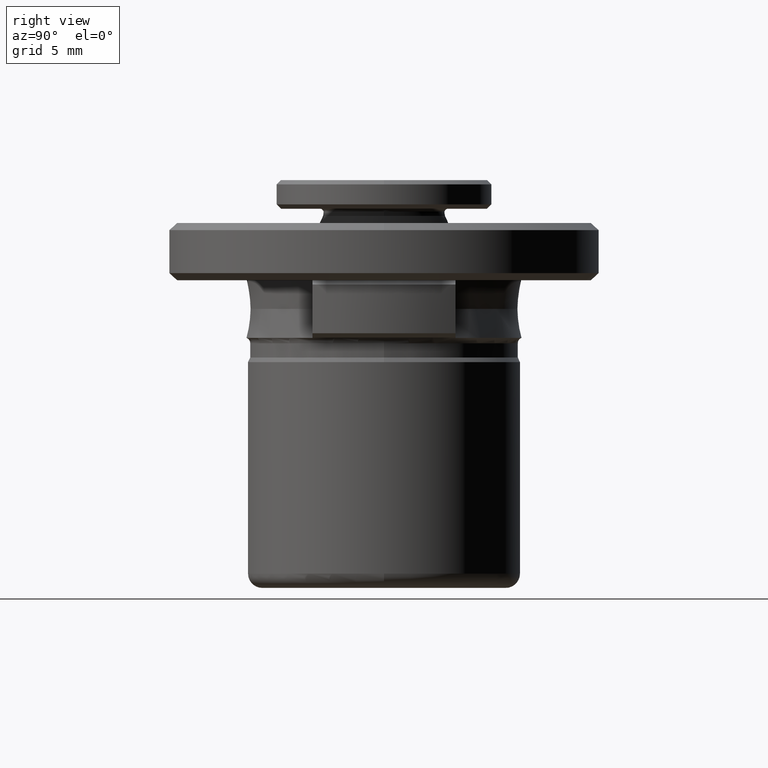
[diagram: clean part render]
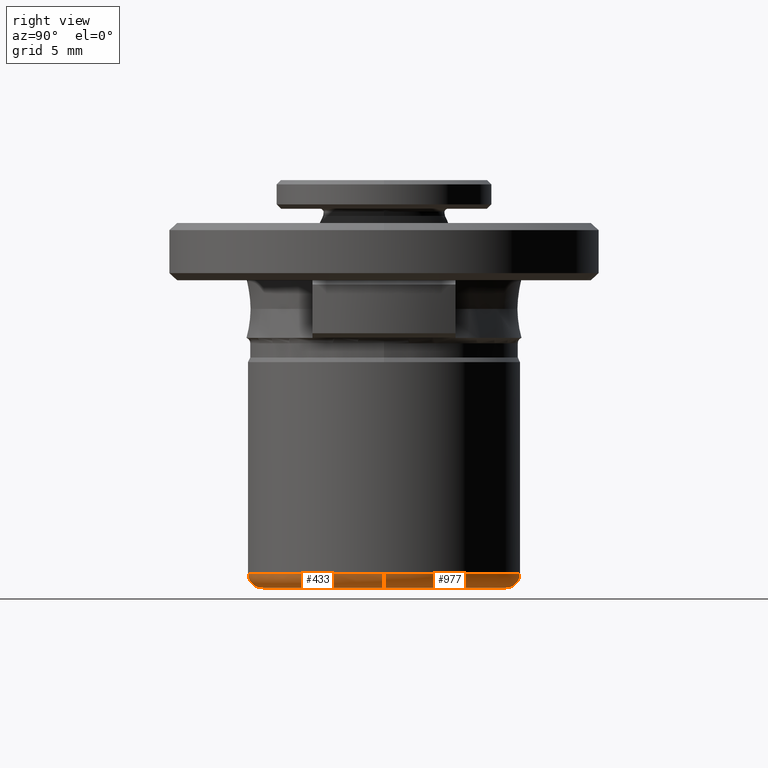
[diagram: same view with one multi-face feature highlighted, each face labeled with its STEP entity id]
A machine part, right view. The highlighted faces form ONE feature: a constant-radius fillet chain: 2 tangent blend faces with common blend radius 1 mm. The faces share edges in the B-rep.
Their STEP definitions:
[1] entity #433 (Torus):
#112 = CARTESIAN_POINT ( 'NONE',  ( 0.0000000000000000000, 2.364620801796248300E-016, -11.75000000000000000 ) ) ;
#114 = ORIENTED_EDGE ( 'NONE', *, *, #713, .F. ) ;
#247 = DIRECTION ( 'NONE',  ( -0.0000000000000000000, -0.0000000000000000000, -1.000000000000000000 ) ) ;
#371 = AXIS2_PLACEMENT_3D ( 'NONE', #1959, #761, #1793 ) ;
#374 = DIRECTION ( 'NONE',  ( -1.000000000000000000, 1.224646799147351500E-016, 0.0000000000000000000 ) ) ;
#397 = DIRECTION ( 'NONE',  ( 1.224646799147353200E-016, 1.000000000000000000, -0.0000000000000000000 ) ) ;
#433 = ADVANCED_FACE ( 'NONE', ( #459 ), #1265, .T. ) ;
#459 = FACE_OUTER_BOUND ( 'NONE', #1148, .T. ) ;
#570 = CARTESIAN_POINT ( 'NONE',  ( 0.0000000000000000000, 2.364620801796248300E-016, -12.75000000000000200 ) ) ;
#582 = ORIENTED_EDGE ( 'NONE', *, *, #2026, .F. ) ;
#591 = DIRECTION ( 'NONE',  ( 0.0000000000000000000, 0.0000000000000000000, 1.000000000000000000 ) ) ;
#629 = DIRECTION ( 'NONE',  ( 0.0000000000000000000, 0.0000000000000000000, 1.000000000000000000 ) ) ;
#663 = CARTESIAN_POINT ( 'NONE',  ( 0.0000000000000000000, 2.364620801796248300E-016, -11.75000000000000000 ) ) ;
#713 = EDGE_CURVE ( 'NONE', #1878, #932, #890, .T. ) ;
#734 = AXIS2_PLACEMENT_3D ( 'NONE', #112, #629, #1945 ) ;
#761 = DIRECTION ( 'NONE',  ( 0.0000000000000000000, 0.0000000000000000000, 1.000000000000000000 ) ) ;
#793 = CIRCLE ( 'NONE', #2130, 8.500000000000000000 ) ;
#866 = CIRCLE ( 'NONE', #1954, 1.000000000000000900 ) ;
#870 = CARTESIAN_POINT ( 'NONE',  ( 9.500000000000001800, 2.364620801796248300E-016, -11.75000000000000000 ) ) ;
#879 = DIRECTION ( 'NONE',  ( 0.0000000000000000000, 0.0000000000000000000, -1.000000000000000000 ) ) ;
#890 = CIRCLE ( 'NONE', #371, 9.500000000000000000 ) ;
#899 = EDGE_CURVE ( 'NONE', #1555, #1813, #1535, .T. ) ;
#932 = VERTEX_POINT ( 'NONE', #870 ) ;
#953 = CARTESIAN_POINT ( 'NONE',  ( 8.500000000000000000, 2.364620801796248300E-016, -12.75000000000000200 ) ) ;
#1060 = CARTESIAN_POINT ( 'NONE',  ( 8.500000000000000000, 2.364620801796248300E-016, -11.75000000000000000 ) ) ;
#1148 = EDGE_LOOP ( 'NONE', ( #1957, #1584, #1779, #114, #582 ) ) ;
#1174 = CARTESIAN_POINT ( 'NONE',  ( -9.500000000000001800, 1.399876539369610000E-015, -11.75000000000000000 ) ) ;
#1176 = EDGE_CURVE ( 'NONE', #1931, #932, #866, .T. ) ;
#1238 = CARTESIAN_POINT ( 'NONE',  ( -8.500000000000000000, 1.338644199412242400E-015, -12.75000000000000200 ) ) ;
#1265 = TOROIDAL_SURFACE ( 'NONE', #1795, 8.500000000000000000, 1.000000000000000000 ) ;
#1476 = DIRECTION ( 'NONE',  ( 1.000000000000000000, 0.0000000000000000000, 0.0000000000000000000 ) ) ;
#1500 = CARTESIAN_POINT ( 'NONE',  ( 0.0000000000000000000, -9.500000000000000000, -11.75000000000000000 ) ) ;
#1535 = CIRCLE ( 'NONE', #1995, 1.000000000000000900 ) ;
#1555 = VERTEX_POINT ( 'NONE', #1238 ) ;
#1584 = ORIENTED_EDGE ( 'NONE', *, *, #2205, .F. ) ;
#1600 = DIRECTION ( 'NONE',  ( 1.000000000000000000, 0.0000000000000000000, 0.0000000000000000000 ) ) ;
#1779 = ORIENTED_EDGE ( 'NONE', *, *, #1176, .T. ) ;
#1782 = CARTESIAN_POINT ( 'NONE',  ( -8.500000000000000000, 1.277411859454874900E-015, -11.75000000000000000 ) ) ;
#1793 = DIRECTION ( 'NONE',  ( 1.000000000000000000, 0.0000000000000000000, 0.0000000000000000000 ) ) ;
#1795 = AXIS2_PLACEMENT_3D ( 'NONE', #663, #591, #1476 ) ;
#1813 = VERTEX_POINT ( 'NONE', #1174 ) ;
#1828 = CIRCLE ( 'NONE', #734, 9.500000000000000000 ) ;
#1878 = VERTEX_POINT ( 'NONE', #1500 ) ;
#1915 = DIRECTION ( 'NONE',  ( 0.0000000000000000000, -1.000000000000000000, 0.0000000000000000000 ) ) ;
#1931 = VERTEX_POINT ( 'NONE', #953 ) ;
#1945 = DIRECTION ( 'NONE',  ( 1.000000000000000000, 0.0000000000000000000, 0.0000000000000000000 ) ) ;
#1954 = AXIS2_PLACEMENT_3D ( 'NONE', #1060, #1915, #879 ) ;
#1957 = ORIENTED_EDGE ( 'NONE', *, *, #899, .F. ) ;
#1959 = CARTESIAN_POINT ( 'NONE',  ( 0.0000000000000000000, 2.364620801796248300E-016, -11.75000000000000000 ) ) ;
#1995 = AXIS2_PLACEMENT_3D ( 'NONE', #1782, #397, #374 ) ;
#2026 = EDGE_CURVE ( 'NONE', #1813, #1878, #1828, .T. ) ;
#2130 = AXIS2_PLACEMENT_3D ( 'NONE', #570, #247, #1600 ) ;
#2205 = EDGE_CURVE ( 'NONE', #1931, #1555, #793, .T. ) ;
[2] entity #977 (Torus):
#174 = ORIENTED_EDGE ( 'NONE', *, *, #913, .F. ) ;
#186 = ORIENTED_EDGE ( 'NONE', *, *, #1595, .F. ) ;
#214 = DIRECTION ( 'NONE',  ( 1.000000000000000000, 0.0000000000000000000, 0.0000000000000000000 ) ) ;
#373 = DIRECTION ( 'NONE',  ( 0.0000000000000000000, 0.0000000000000000000, 1.000000000000000000 ) ) ;
#374 = DIRECTION ( 'NONE',  ( -1.000000000000000000, 1.224646799147351500E-016, 0.0000000000000000000 ) ) ;
#397 = DIRECTION ( 'NONE',  ( 1.224646799147353200E-016, 1.000000000000000000, -0.0000000000000000000 ) ) ;
#446 = AXIS2_PLACEMENT_3D ( 'NONE', #1601, #900, #1923 ) ;
#549 = DIRECTION ( 'NONE',  ( 0.0000000000000000000, 0.0000000000000000000, 1.000000000000000000 ) ) ;
#555 = DIRECTION ( 'NONE',  ( 1.000000000000000000, 0.0000000000000000000, 0.0000000000000000000 ) ) ;
#573 = VERTEX_POINT ( 'NONE', #2056 ) ;
#679 = FACE_OUTER_BOUND ( 'NONE', #1679, .T. ) ;
#866 = CIRCLE ( 'NONE', #1954, 1.000000000000000900 ) ;
#870 = CARTESIAN_POINT ( 'NONE',  ( 9.500000000000001800, 2.364620801796248300E-016, -11.75000000000000000 ) ) ;
#879 = DIRECTION ( 'NONE',  ( 0.0000000000000000000, 0.0000000000000000000, -1.000000000000000000 ) ) ;
#899 = EDGE_CURVE ( 'NONE', #1555, #1813, #1535, .T. ) ;
#900 = DIRECTION ( 'NONE',  ( 0.0000000000000000000, 0.0000000000000000000, 1.000000000000000000 ) ) ;
#913 = EDGE_CURVE ( 'NONE', #1555, #1931, #1083, .T. ) ;
#932 = VERTEX_POINT ( 'NONE', #870 ) ;
#953 = CARTESIAN_POINT ( 'NONE',  ( 8.500000000000000000, 2.364620801796248300E-016, -12.75000000000000200 ) ) ;
#977 = ADVANCED_FACE ( 'NONE', ( #679 ), #2004, .T. ) ;
#1060 = CARTESIAN_POINT ( 'NONE',  ( 8.500000000000000000, 2.364620801796248300E-016, -11.75000000000000000 ) ) ;
#1065 = DIRECTION ( 'NONE',  ( -0.0000000000000000000, -0.0000000000000000000, -1.000000000000000000 ) ) ;
#1083 = CIRCLE ( 'NONE', #2112, 8.500000000000000000 ) ;
#1174 = CARTESIAN_POINT ( 'NONE',  ( -9.500000000000001800, 1.399876539369610000E-015, -11.75000000000000000 ) ) ;
#1176 = EDGE_CURVE ( 'NONE', #1931, #932, #866, .T. ) ;
#1238 = CARTESIAN_POINT ( 'NONE',  ( -8.500000000000000000, 1.338644199412242400E-015, -12.75000000000000200 ) ) ;
#1361 = CIRCLE ( 'NONE', #1544, 9.500000000000000000 ) ;
#1535 = CIRCLE ( 'NONE', #1995, 1.000000000000000900 ) ;
#1544 = AXIS2_PLACEMENT_3D ( 'NONE', #2116, #373, #555 ) ;
#1555 = VERTEX_POINT ( 'NONE', #1238 ) ;
#1573 = CARTESIAN_POINT ( 'NONE',  ( 0.0000000000000000000, 2.364620801796248300E-016, -11.75000000000000000 ) ) ;
#1587 = DIRECTION ( 'NONE',  ( 1.000000000000000000, 0.0000000000000000000, 0.0000000000000000000 ) ) ;
#1595 = EDGE_CURVE ( 'NONE', #573, #1813, #1913, .T. ) ;
#1601 = CARTESIAN_POINT ( 'NONE',  ( 0.0000000000000000000, 2.364620801796248300E-016, -11.75000000000000000 ) ) ;
#1607 = CARTESIAN_POINT ( 'NONE',  ( 0.0000000000000000000, 2.364620801796248300E-016, -12.75000000000000200 ) ) ;
#1679 = EDGE_LOOP ( 'NONE', ( #174, #2123, #186, #1917, #2114 ) ) ;
#1744 = AXIS2_PLACEMENT_3D ( 'NONE', #1573, #549, #214 ) ;
#1782 = CARTESIAN_POINT ( 'NONE',  ( -8.500000000000000000, 1.277411859454874900E-015, -11.75000000000000000 ) ) ;
#1813 = VERTEX_POINT ( 'NONE', #1174 ) ;
#1913 = CIRCLE ( 'NONE', #1744, 9.500000000000000000 ) ;
#1915 = DIRECTION ( 'NONE',  ( 0.0000000000000000000, -1.000000000000000000, 0.0000000000000000000 ) ) ;
#1917 = ORIENTED_EDGE ( 'NONE', *, *, #2070, .F. ) ;
#1923 = DIRECTION ( 'NONE',  ( 1.000000000000000000, 0.0000000000000000000, 0.0000000000000000000 ) ) ;
#1931 = VERTEX_POINT ( 'NONE', #953 ) ;
#1954 = AXIS2_PLACEMENT_3D ( 'NONE', #1060, #1915, #879 ) ;
#1995 = AXIS2_PLACEMENT_3D ( 'NONE', #1782, #397, #374 ) ;
#2004 = TOROIDAL_SURFACE ( 'NONE', #446, 8.500000000000000000, 1.000000000000000000 ) ;
#2056 = CARTESIAN_POINT ( 'NONE',  ( 1.163414459189985500E-015, 9.500000000000000000, -11.75000000000000000 ) ) ;
#2070 = EDGE_CURVE ( 'NONE', #932, #573, #1361, .T. ) ;
#2112 = AXIS2_PLACEMENT_3D ( 'NONE', #1607, #1065, #1587 ) ;
#2114 = ORIENTED_EDGE ( 'NONE', *, *, #1176, .F. ) ;
#2116 = CARTESIAN_POINT ( 'NONE',  ( 0.0000000000000000000, 2.364620801796248300E-016, -11.75000000000000000 ) ) ;
#2123 = ORIENTED_EDGE ( 'NONE', *, *, #899, .T. ) ;